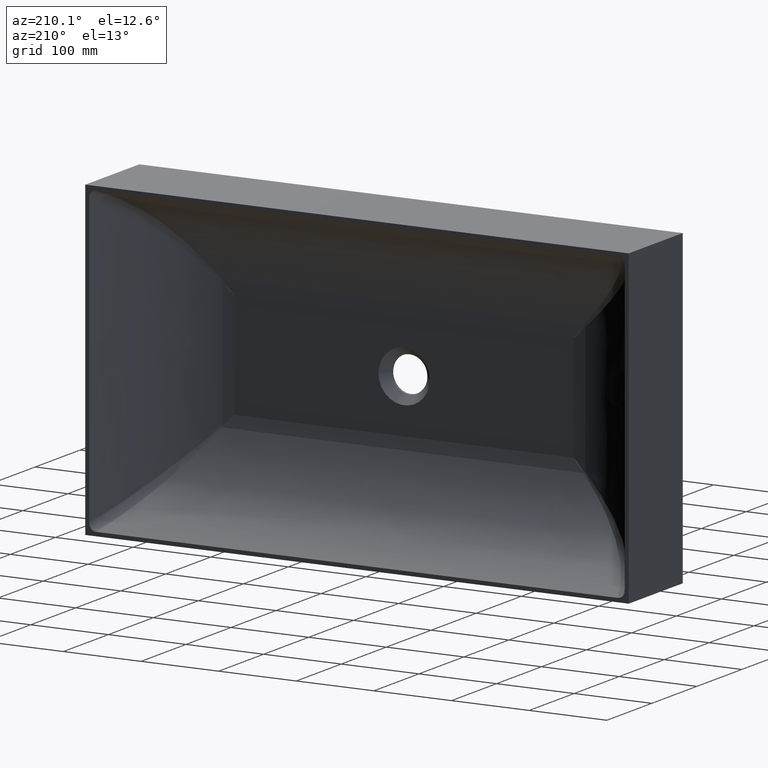
[diagram: clean part render]
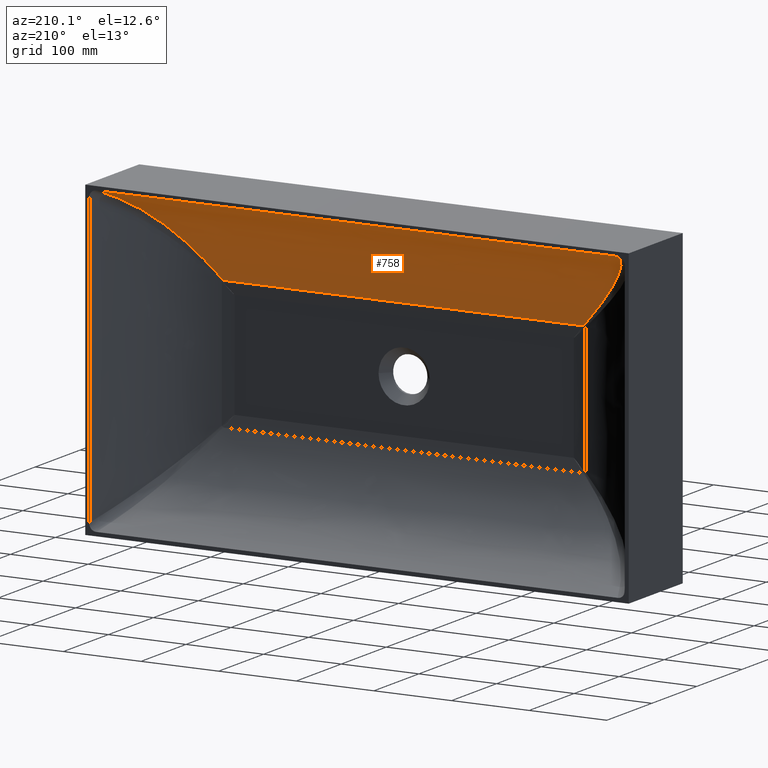
[diagram: same view with one face highlighted and labeled with its STEP entity id]
A machine part, auxiliary view. The second image highlights one B-rep face of the part: STEP entity #758.
In plain terms, the highlighted face is a freeform B-spline surface patch.
Its self-contained STEP definition (entity closure, byte-faithful):
#24 = CARTESIAN_POINT ( 'NONE',  ( -317.3066264094195500, 80.68230226644483600, 175.7607686184700800 ) ) ;
#53 = CARTESIAN_POINT ( 'NONE',  ( 335.5790577006914100, 119.9922663913401900, 194.9671193596227600 ) ) ;
#78 = ORIENTED_EDGE ( 'NONE', *, *, #134, .T. ) ;
#83 = EDGE_LOOP ( 'NONE', ( #2852, #899, #2395, #78 ) ) ;
#85 = CARTESIAN_POINT ( 'NONE',  ( -297.0550770644530900, 53.22900477632432400, 154.1138763266342000 ) ) ;
#111 = CARTESIAN_POINT ( 'NONE',  ( 0.0000000000000000000, 119.9999999999992200, 194.9470410668077100 ) ) ;
#134 = EDGE_CURVE ( 'NONE', #3217, #1709, #3107, .T. ) ;
#168 = CARTESIAN_POINT ( 'NONE',  ( 327.2722296423069100, 99.64894552346491700, 186.2698783149439000 ) ) ;
#200 = CARTESIAN_POINT ( 'NONE',  ( -327.1783490029910700, 99.44610857195272000, 186.1713505328625300 ) ) ;
#267 = CARTESIAN_POINT ( 'NONE',  ( 259.1934130581681800, 25.51750841957950300, 113.1494399535249500 ) ) ;
#387 = CARTESIAN_POINT ( 'NONE',  ( -224.9999999999978700, 15.14192706017334400, 74.99999999999928900 ) ) ;
#416 = DIRECTION ( 'NONE',  ( -1.000000000000000000, -0.0000000000000000000, -0.0000000000000000000 ) ) ;
#439 = CARTESIAN_POINT ( 'NONE',  ( 328.4482755062239200, 102.2283796903017500, 187.5033164088408500 ) ) ;
#443 = CARTESIAN_POINT ( 'NONE',  ( -312.4698190830774300, 72.99776030866070200, 170.6226761556751200 ) ) ;
#450 = CARTESIAN_POINT ( 'NONE',  ( -325.1938065460172400, 95.27425591492499300, 184.0865826517658700 ) ) ;
#456 = CARTESIAN_POINT ( 'NONE',  ( -307.4608583961118600, 65.85436435975087500, 165.2785037577404200 ) ) ;
#485 = CARTESIAN_POINT ( 'NONE',  ( 263.6618703320866100, 27.83141726354947600, 117.9835833059262900 ) ) ;
#487 = CARTESIAN_POINT ( 'NONE',  ( 327.8569277099741200, 100.9223965141017800, 186.8832995026013500 ) ) ;
#494 = CARTESIAN_POINT ( 'NONE',  ( 238.2607265738751000, 17.98234739744149000, 90.62296586599831000 ) ) ;
#500 = CARTESIAN_POINT ( 'NONE',  ( 288.4668329210251700, 44.82839929447220600, 144.8443966633425600 ) ) ;
#504 = CARTESIAN_POINT ( 'NONE',  ( -332.7614507323598900, 112.1531550752461500, 192.0164447968659800 ) ) ;
#516 = CARTESIAN_POINT ( 'NONE',  ( -84.06447398185434800, 18.98430783671530600, 102.1934219455680200 ) ) ;
#523 = CARTESIAN_POINT ( 'NONE',  ( -327.0876725036438300, 99.25062508290041300, 186.0761790793830500 ) ) ;
#545 = LINE ( 'NONE', #111, #2825 ) ;
#562 = DIRECTION ( 'NONE',  ( -1.000000000000000000, 0.0000000000000000000, -0.0000000000000000000 ) ) ;
#567 = CARTESIAN_POINT ( 'NONE',  ( -335.5790577006025600, 119.9922664137191500, 194.9671193020243700 ) ) ;
#577 = CARTESIAN_POINT ( 'NONE',  ( -74.99999999999751300, 15.14192706017334400, 74.99999999999928900 ) ) ;
#597 = CARTESIAN_POINT ( 'NONE',  ( -291.7890500186946400, 48.08568855827086000, 148.4299420910678900 ) ) ;
#619 = CARTESIAN_POINT ( 'NONE',  ( 110.9800307674646500, 87.79321814820718800, 182.9400923023900400 ) ) ;
#679 = CARTESIAN_POINT ( 'NONE',  ( -232.0997874732064800, 16.67600946821184100, 84.04874463206724000 ) ) ;
#688 = EDGE_CURVE ( 'NONE', #2506, #1315, #2358, .T. ) ;
#693 = CARTESIAN_POINT ( 'NONE',  ( 327.2742257637953600, 99.65326337320098600, 186.2719731383770400 ) ) ;
#697 = CARTESIAN_POINT ( 'NONE',  ( -326.5433588107935100, 98.08596459546230100, 185.5047334539326300 ) ) ;
#747 = CARTESIAN_POINT ( 'NONE',  ( 317.6912895954710100, 81.32983310398869000, 176.1683561946488800 ) ) ;
#750 = CARTESIAN_POINT ( 'NONE',  ( -320.6255068506317800, 86.41043185338337200, 179.2735175027982000 ) ) ;
#758 = ADVANCED_FACE ( 'NONE', ( #3226 ), #2503, .T. ) ;
#786 = CARTESIAN_POINT ( 'NONE',  ( 84.06447398185790100, 18.98430783671530600, 102.1934219455680200 ) ) ;
#816 = CARTESIAN_POINT ( 'NONE',  ( -274.2583913230332700, 33.86744645952724400, 129.4569832418126800 ) ) ;
#819 = CARTESIAN_POINT ( 'NONE',  ( -313.9485901820393100, 75.23817119666216500, 172.1966692411842500 ) ) ;
#857 = CARTESIAN_POINT ( 'NONE',  ( -344.9999999999971000, 120.1419270601733400, 194.9999999999985200 ) ) ;
#871 = CARTESIAN_POINT ( 'NONE',  ( 317.4223765345762400, 80.87661891696782800, 175.8834316352011100 ) ) ;
#874 = CARTESIAN_POINT ( 'NONE',  ( 345.0000000000006300, 120.1419270601733400, 194.9999999999985200 ) ) ;
#899 = ORIENTED_EDGE ( 'NONE', *, *, #688, .T. ) ;
#902 = CARTESIAN_POINT ( 'NONE',  ( 317.3775828976903900, 80.80136676138845100, 175.8359642794414400 ) ) ;
#918 = CARTESIAN_POINT ( 'NONE',  ( 332.9400923023922000, 87.79321814820718800, 182.9400923023900400 ) ) ;
#964 = CARTESIAN_POINT ( 'NONE',  ( -332.9400923023886200, 87.79321814820718800, 182.9400923023900400 ) ) ;
#972 = CARTESIAN_POINT ( 'NONE',  ( 334.1702269521768500, 116.0764994845922500, 193.4817137810219400 ) ) ;
#988 = CARTESIAN_POINT ( 'NONE',  ( 319.3878477761212500, 84.25653321627410700, 177.9641380552614900 ) ) ;
#991 = CARTESIAN_POINT ( 'NONE',  ( -318.9705374727204800, 83.47379609186295100, 177.5241044364958600 ) ) ;
#1004 = CARTESIAN_POINT ( 'NONE',  ( 1.776356839400250500E-012, 16.67600946821231400, 84.04874463206901700 ) ) ;
#1014 = CARTESIAN_POINT ( 'NONE',  ( -292.5909804814274400, 48.86257580212167500, 149.2956754318293000 ) ) ;
#1024 = CARTESIAN_POINT ( 'NONE',  ( -232.0997874732064800, 16.67600946821184100, 84.04874463206724000 ) ) ;
#1049 = CARTESIAN_POINT ( 'NONE',  ( -260.8080639057740200, 26.39928409088373200, 114.8973447898894400 ) ) ;
#1068 = CARTESIAN_POINT ( 'NONE',  ( 317.5119855467161800, 81.02736604320938300, 175.9783836889033100 ) ) ;
#1073 = CARTESIAN_POINT ( 'NONE',  ( 263.6286830689073800, 27.81422457026816300, 117.9476799588762500 ) ) ;
#1082 = CARTESIAN_POINT ( 'NONE',  ( -317.3253226096974200, 80.71365760194122200, 175.7805822907838000 ) ) ;
#1129 = CARTESIAN_POINT ( 'NONE',  ( 91.84225175963689500, 28.98430783671532000, 125.5267552789014500 ) ) ;
#1146 = CARTESIAN_POINT ( 'NONE',  ( -327.2236824190210300, 99.54399794345268000, 186.2189285163973700 ) ) ;
#1164 = CARTESIAN_POINT ( 'NONE',  ( 327.5625226311322500, 100.2789961956197300, 186.5744792063037800 ) ) ;
#1175 = CARTESIAN_POINT ( 'NONE',  ( -317.1232894730588300, 80.37545793556429900, 175.5664556726413500 ) ) ;
#1181 = CARTESIAN_POINT ( 'NONE',  ( -326.9062819025451200, 98.86083734146832600, 185.8857753420761300 ) ) ;
#1272 = CARTESIAN_POINT ( 'NONE',  ( -327.2625370331556400, 99.62798139108956300, 186.2597055023900300 ) ) ;
#1288 = CARTESIAN_POINT ( 'NONE',  ( 275.5267552789018200, 28.98430783671532000, 125.5267552789014500 ) ) ;
#1311 = CARTESIAN_POINT ( 'NONE',  ( -263.3817404427707600, 27.68665710730804400, 117.6805352766725700 ) ) ;
#1315 = VERTEX_POINT ( 'NONE', #1889 ) ;
#1347 = CARTESIAN_POINT ( 'NONE',  ( -317.3296017486001100, 80.72083578052225100, 175.7851171468048800 ) ) ;
#1363 = CARTESIAN_POINT ( 'NONE',  ( -269.1128024024156400, 30.65406842306478600, 123.8806051955411800 ) ) ;
#1401 = CARTESIAN_POINT ( 'NONE',  ( 270.3157150761026100, 31.54771247591815000, 125.1860328598328500 ) ) ;
#1415 = CARTESIAN_POINT ( 'NONE',  ( 292.8593756875519000, 49.12511172554843600, 149.5853600473346300 ) ) ;
#1430 = CARTESIAN_POINT ( 'NONE',  ( 328.9592370394015000, 103.3811042475193900, 188.0385660676075200 ) ) ;
#1465 = CARTESIAN_POINT ( 'NONE',  ( 75.00000000000106600, 15.14192706017334400, 74.99999999999928900 ) ) ;
#1482 = CARTESIAN_POINT ( 'NONE',  ( 283.9354560105948100, 40.95464305849713300, 139.9389244733185900 ) ) ;
#1484 = CARTESIAN_POINT ( 'NONE',  ( -283.8585881384188400, 41.03717244376304800, 139.8549960268641100 ) ) ;
#1485 = CARTESIAN_POINT ( 'NONE',  ( 254.3909770184978900, 23.38846040987906200, 107.9618733095112500 ) ) ;
#1486 = LINE ( 'NONE', #1004, #2231 ) ;
#1569 = CARTESIAN_POINT ( 'NONE',  ( 317.3455919322787500, 80.74766504321405600, 175.8020626131768200 ) ) ;
#1593 = CARTESIAN_POINT ( 'NONE',  ( -323.1157868688132500, 91.12899355778330300, 181.8995257292765500 ) ) ;
#1610 = CARTESIAN_POINT ( 'NONE',  ( -317.2280788441959800, 80.55070007011760000, 175.6775225650258100 ) ) ;
#1661 = CARTESIAN_POINT ( 'NONE',  ( 327.4156466616815900, 99.95967840393532800, 186.4203757825616800 ) ) ;
#1671 = CARTESIAN_POINT ( 'NONE',  ( 296.4927057450335000, 52.80678250999118700, 153.5034922761866500 ) ) ;
#1676 = CARTESIAN_POINT ( 'NONE',  ( -316.4931358104452700, 79.32945422287444600, 174.8983288541444700 ) ) ;
#1690 = CARTESIAN_POINT ( 'NONE',  ( -281.5161511368968400, 39.18281229809762300, 137.3183971899246100 ) ) ;
#1691 = CARTESIAN_POINT ( 'NONE',  ( -263.5940835475643700, 27.79631271435435700, 117.9102490916322400 ) ) ;
#1703 = CARTESIAN_POINT ( 'NONE',  ( -263.5031390323055700, 27.74929076329744500, 117.8118635522178200 ) ) ;
#1709 = VERTEX_POINT ( 'NONE', #2260 ) ;
#1730 = CARTESIAN_POINT ( 'NONE',  ( 294.6136897588957600, 50.87274885486559100, 151.4779893077123300 ) ) ;
#1809 = CARTESIAN_POINT ( 'NONE',  ( -287.2633256288259000, 43.93505820575726500, 143.5387945333840500 ) ) ;
#1824 = CARTESIAN_POINT ( 'NONE',  ( -257.8960901251095900, 25.03168968775762700, 111.7508156198224500 ) ) ;
#1848 = CARTESIAN_POINT ( 'NONE',  ( 327.2794599488602200, 99.66458638384754900, 186.2774661189499700 ) ) ;
#1852 = CARTESIAN_POINT ( 'NONE',  ( -301.2924346986961300, 57.95158483624668100, 158.6720232663641400 ) ) ;
#1857 = CARTESIAN_POINT ( 'NONE',  ( -288.9384608454188900, 45.41308951033108300, 145.3504175720264000 ) ) ;
#1889 = CARTESIAN_POINT ( 'NONE',  ( -335.5790577006025600, 119.9922664137191500, 194.9671193020243700 ) ) ;
#1890 = CARTESIAN_POINT ( 'NONE',  ( -261.6653634635950400, 26.81738001188090700, 115.8241570343220300 ) ) ;
#1891 = CARTESIAN_POINT ( 'NONE',  ( 252.1934219455683900, 18.98430783671530600, 102.1934219455680200 ) ) ;
#1904 = CARTESIAN_POINT ( 'NONE',  ( 325.6112952176998200, 96.05665338683522200, 184.5268047076498900 ) ) ;
#1932 = CARTESIAN_POINT ( 'NONE',  ( 264.8202799909154800, 28.43876146174131500, 119.2369254645368500 ) ) ;
#1943 = CARTESIAN_POINT ( 'NONE',  ( -252.1934219455666000, 18.98430783671530600, 102.1934219455680200 ) ) ;
#1945 = CARTESIAN_POINT ( 'NONE',  ( -263.6157238698958700, 27.80751428376490600, 117.9336602998092000 ) ) ;
#1986 = CARTESIAN_POINT ( 'NONE',  ( 320.6268311548187700, 86.46278366916300200, 179.2738532568676500 ) ) ;
#2015 = CARTESIAN_POINT ( 'NONE',  ( 293.6701768687734700, 49.92598367000509500, 150.4602690817123700 ) ) ;
#2083 = CARTESIAN_POINT ( 'NONE',  ( 225.0000000000014200, 15.14192706017334400, 74.99999999999928900 ) ) ;
#2088 = CARTESIAN_POINT ( 'NONE',  ( -315.6491788399427500, 77.94926218742681100, 174.0029240407883700 ) ) ;
#2113 = CARTESIAN_POINT ( 'NONE',  ( -251.7743254775162100, 22.44654113396834200, 105.1459967664038500 ) ) ;
#2120 = CARTESIAN_POINT ( 'NONE',  ( 330.6767008446561200, 107.3602415969508300, 189.8357761046546800 ) ) ;
#2136 = CARTESIAN_POINT ( 'NONE',  ( -243.9245477879342200, 19.62085762528574400, 96.69855986041420700 ) ) ;
#2155 = CARTESIAN_POINT ( 'NONE',  ( 243.9246186810536600, 19.62087989881008100, 96.69863626574803600 ) ) ;
#2156 = CARTESIAN_POINT ( 'NONE',  ( -317.3178443113179100, 80.70111477097361800, 175.7726570430284900 ) ) ;
#2196 = CARTESIAN_POINT ( 'NONE',  ( -309.4856994776325800, 68.62515587846228000, 167.4421779481002400 ) ) ;
#2197 = CARTESIAN_POINT ( 'NONE',  ( -263.6070681667940200, 27.80303346589962400, 117.9242962678978400 ) ) ;
#2227 = CARTESIAN_POINT ( 'NONE',  ( -317.2804481253663200, 80.63841861474716700, 175.7330250914766300 ) ) ;
#2231 = VECTOR ( 'NONE', #562, 1000.000000000000000 ) ;
#2253 = CARTESIAN_POINT ( 'NONE',  ( 105.4244752119117800, 62.79321814820719500, 166.2734256357243200 ) ) ;
#2260 = CARTESIAN_POINT ( 'NONE',  ( 232.0997874732100300, 16.67600946821206500, 84.04874463206724000 ) ) ;
#2266 = CARTESIAN_POINT ( 'NONE',  ( 301.2611578181826000, 58.08814331338835000, 158.6335623847288600 ) ) ;
#2304 = CARTESIAN_POINT ( 'NONE',  ( 318.7694106713936400, 83.17206057249063600, 177.3099894873987000 ) ) ;
#2336 = CARTESIAN_POINT ( 'NONE',  ( 293.1974388316795100, 49.45762648897949300, 149.9501902908163800 ) ) ;
#2358 = B_SPLINE_CURVE_WITH_KNOTS ( 'NONE', 3,
 ( #1024, #2767, #2136, #2113, #3260, #1824, #3308, #1049, #1890, #3194, #3312, #1311, #1703, #2423, #1691, #2197, #1945, #3298, #1363, #816, #1690, #1484, #1809, #1857, #3327, #597, #3015, #3027, #1014, #3263, #85, #1852, #456, #2196, #443, #819, #2088, #1676, #2755, #1175, #1610, #2227, #24, #2156, #1082, #1347, #991, #750, #1593, #3160, #450, #2938, #697, #1181, #523, #200, #1146, #2380, #2548, #1272, #2925, #2446, #504, #567 ),
 .UNSPECIFIED., .F., .F.,
 ( 4, 2, 2, 2, 1, 1, 1, 1, 1, 1, 1, 2, 2, 2, 2, 1, 1, 1, 1, 2, 2, 2, 2, 1, 1, 1, 1, 1, 1, 1, 1, 2, 2, 2, 2, 1, 1, 1, 1, 1, 1, 1, 2, 2, 4 ),
 ( 0.0000000000000000000, 0.1250000000001154600, 0.1875000000001733600, 0.2187500000002026200, 0.2343750000002172200, 0.2421875000002242100, 0.2460937500002272900, 0.2480468750002291800, 0.2490234375002301500, 0.2495117187502306200, 0.2497558593752309500, 0.2498779296877308700, 0.2500000000002307600, 0.3750000000001180200, 0.4375000000000613400, 0.4687500000000334200, 0.4843750000000196000, 0.4921875000000126600, 0.4960937500000093300, 0.4980468750000076100, 0.5000000000000058800, 0.6249999999998872000, 0.6874999999998279200, 0.7187499999997980500, 0.7343749999997831700, 0.7421874999997759600, 0.7460937499997721800, 0.7480468749997702900, 0.7490234374997695200, 0.7495117187497690700, 0.7497558593747689600, 0.7498779296872689600, 0.7499999999997689600, 0.8124999999998801000, 0.8437499999999353900, 0.8593749999999629200, 0.8671874999999764600, 0.8710937499999831200, 0.8730468749999866800, 0.8740234374999883400, 0.8745117187499890100, 0.8747558593749893400, 0.8748779296874895600, 0.8749999999999897900, 1.000000000000000000 ),
 .UNSPECIFIED. ) ;
#2380 = CARTESIAN_POINT ( 'NONE',  ( -327.2463479019436400, 99.59297956376732900, 186.2427155549227700 ) ) ;
#2395 = ORIENTED_EDGE ( 'NONE', *, *, #2559, .F. ) ;
#2400 = CARTESIAN_POINT ( 'NONE',  ( -91.84225175963334200, 28.98430783671532000, 125.5267552789014500 ) ) ;
#2407 = CARTESIAN_POINT ( 'NONE',  ( 274.1816296963006600, 33.95005270910446900, 129.3731687427639400 ) ) ;
#2423 = CARTESIAN_POINT ( 'NONE',  ( -263.5637786495652800, 27.78063428900922100, 117.8774644472878500 ) ) ;
#2446 = CARTESIAN_POINT ( 'NONE',  ( -329.9487105724202800, 105.4376769534205500, 189.0787198144944600 ) ) ;
#2449 = CARTESIAN_POINT ( 'NONE',  ( 329.9859109655513400, 105.7321307989434300, 189.1134114329993000 ) ) ;
#2470 = CARTESIAN_POINT ( 'NONE',  ( 232.0997874732100300, 16.67600946821206500, 84.04874463206724000 ) ) ;
#2492 = CARTESIAN_POINT ( 'NONE',  ( 323.9459098852603900, 92.70190716742818900, 182.7748934732048300 ) ) ;
#2503 = B_SPLINE_SURFACE_WITH_KNOTS ( 'NONE', 3, 3, ( 
 ( #2083, #1891, #1288, #3205, #918, #874 ),
 ( #1465, #786, #1129, #2253, #619, #2972 ),
 ( #577, #516, #2400, #2904, #3083, #2650 ),
 ( #387, #1943, #2960, #2912, #964, #857 ) ),
 .UNSPECIFIED., .F., .F., .F.,
 ( 4, 4 ),
 ( 4, 2, 4 ),
 ( 0.0000000000000000000, 1.000000000000000000 ),
 ( 0.0000000000000000000, 0.4779100856724731200, 1.000000000000000000 ),
 .UNSPECIFIED. ) ;
#2506 = VERTEX_POINT ( 'NONE', #679 ) ;
#2548 = CARTESIAN_POINT ( 'NONE',  ( -327.2560614160309500, 99.61397960429087600, 186.2529095795839000 ) ) ;
#2559 = EDGE_CURVE ( 'NONE', #3217, #1315, #545, .T. ) ;
#2581 = CARTESIAN_POINT ( 'NONE',  ( 263.6993755274353900, 27.85086057147156400, 118.0241582157373400 ) ) ;
#2593 = CARTESIAN_POINT ( 'NONE',  ( 317.3365353740902600, 80.73246800677048900, 175.7924649805508700 ) ) ;
#2614 = CARTESIAN_POINT ( 'NONE',  ( 263.9242144217021200, 27.96772854943759500, 118.2674051532114800 ) ) ;
#2620 = EDGE_CURVE ( 'NONE', #1709, #2506, #1486, .T. ) ;
#2621 = CARTESIAN_POINT ( 'NONE',  ( 263.6457937325723200, 27.82308760446896700, 117.9661909581056800 ) ) ;
#2633 = CARTESIAN_POINT ( 'NONE',  ( 263.7743584432170700, 27.88977692771058500, 118.1052790990456000 ) ) ;
#2645 = CARTESIAN_POINT ( 'NONE',  ( 327.3056347420814500, 99.72122874461665300, 186.3049346643048500 ) ) ;
#2650 = CARTESIAN_POINT ( 'NONE',  ( -114.9999999999966600, 120.1419270601733400, 194.9999999999985200 ) ) ;
#2657 = CARTESIAN_POINT ( 'NONE',  ( 263.6350753451899300, 27.81753520675357200, 117.9545953704522400 ) ) ;
#2712 = CARTESIAN_POINT ( 'NONE',  ( 264.2234873388562700, 28.12410701132807100, 118.5911946741278600 ) ) ;
#2714 = CARTESIAN_POINT ( 'NONE',  ( 317.3391941437042800, 80.73692917445825400, 175.7952826034623700 ) ) ;
#2755 = CARTESIAN_POINT ( 'NONE',  ( -316.9135078431206700, 80.02575284261017400, 175.3440749328190700 ) ) ;
#2767 = CARTESIAN_POINT ( 'NONE',  ( -238.2606748975629500, 17.98233644022902000, 90.62291072319210600 ) ) ;
#2822 = CARTESIAN_POINT ( 'NONE',  ( 303.3486052359136200, 60.58588013762582800, 160.8742145894892100 ) ) ;
#2825 = VECTOR ( 'NONE', #416, 1000.000000000000000 ) ;
#2827 = CARTESIAN_POINT ( 'NONE',  ( 309.5170332508210400, 68.48867098714112000, 167.4807000019650600 ) ) ;
#2833 = CARTESIAN_POINT ( 'NONE',  ( 298.0890196540182700, 54.53499102998195300, 155.2219555633492400 ) ) ;
#2837 = CARTESIAN_POINT ( 'NONE',  ( 292.7905729310617700, 49.05767105421873700, 149.5111034687045300 ) ) ;
#2852 = ORIENTED_EDGE ( 'NONE', *, *, #2620, .T. ) ;
#2877 = CARTESIAN_POINT ( 'NONE',  ( 268.3523025928530500, 30.37941793147902900, 123.0598105325134800 ) ) ;
#2904 = CARTESIAN_POINT ( 'NONE',  ( -105.4244752119064500, 62.79321814820719500, 166.2734256357243200 ) ) ;
#2912 = CARTESIAN_POINT ( 'NONE',  ( -316.2734256357211400, 62.79321814820719500, 166.2734256357243200 ) ) ;
#2925 = CARTESIAN_POINT ( 'NONE',  ( -327.2663956691917500, 99.63632596310347400, 186.2637549774821100 ) ) ;
#2938 = CARTESIAN_POINT ( 'NONE',  ( -325.8170130073007700, 96.55491674182779600, 184.7417830547104500 ) ) ;
#2960 = CARTESIAN_POINT ( 'NONE',  ( -275.5267552788982400, 28.98430783671532000, 125.5267552789014500 ) ) ;
#2972 = CARTESIAN_POINT ( 'NONE',  ( 115.0000000000002100, 120.1419270601733400, 194.9999999999985200 ) ) ;
#3015 = CARTESIAN_POINT ( 'NONE',  ( -292.2575092831085600, 48.53816644298141400, 148.9357069589265700 ) ) ;
#3027 = CARTESIAN_POINT ( 'NONE',  ( -292.4576725254966600, 48.73272674301866700, 149.1517791541642500 ) ) ;
#3030 = CARTESIAN_POINT ( 'NONE',  ( 276.6777033927845100, 35.63927561941286400, 132.0775177111391900 ) ) ;
#3032 = CARTESIAN_POINT ( 'NONE',  ( 321.4556357266402000, 87.98335176055252300, 180.1488910926369700 ) ) ;
#3083 = CARTESIAN_POINT ( 'NONE',  ( -110.9800307674611000, 87.79321814820718800, 182.9400923023900400 ) ) ;
#3107 = B_SPLINE_CURVE_WITH_KNOTS ( 'NONE', 3,
 ( #3280, #972, #3256, #2120, #2449, #1430, #439, #487, #1164, #1661, #3110, #2645, #3317, #1848, #693, #168, #1904, #2492, #3032, #1986, #988, #2304, #3178, #747, #1068, #871, #902, #3266, #1569, #2714, #2593, #3133, #2827, #2822, #2266, #2833, #1671, #1730, #2015, #2336, #3202, #1415, #2837, #500, #1482, #3030, #2407, #1401, #2877, #3319, #1932, #2712, #2614, #2633, #2581, #485, #2621, #2657, #1073, #267, #1485, #2155, #494, #2470 ),
 .UNSPECIFIED., .F., .F.,
 ( 4, 2, 2, 1, 1, 1, 1, 1, 1, 1, 2, 2, 2, 2, 1, 1, 1, 1, 1, 1, 1, 2, 2, 2, 2, 1, 1, 1, 1, 2, 2, 2, 2, 1, 1, 1, 1, 1, 1, 1, 1, 2, 2, 2, 4 ),
 ( 0.0000000000000000000, 0.06249999999994307300, 0.09374999999991494300, 0.1093749999999007000, 0.1171874999998934200, 0.1210937499998898400, 0.1230468749998879600, 0.1240234374998873100, 0.1245117187498869900, 0.1247558593748867400, 0.1248779296873864200, 0.1249999999998861000, 0.1874999999997391800, 0.2187499999996655500, 0.2343749999996288200, 0.2421874999996103400, 0.2460937499996012100, 0.2480468749995966300, 0.2490234374995942400, 0.2495117187495928500, 0.2497558593745923800, 0.2498779296870922400, 0.2499999999995921000, 0.3749999999994545500, 0.4374999999993854900, 0.4687499999993509600, 0.4843749999993334800, 0.4921874999993247600, 0.4960937499993206500, 0.4980468749993184300, 0.4999999999993162100, 0.6249999999991761000, 0.6874999999991059400, 0.7187499999990705200, 0.7343749999990530900, 0.7421874999990445400, 0.7460937499990406600, 0.7480468749990384400, 0.7490234374990376600, 0.7495117187490375500, 0.7497558593740375500, 0.7498779296865376600, 0.7499999999990377700, 0.8749999999995187200, 1.000000000000000000 ),
 .UNSPECIFIED. ) ;
#3110 = CARTESIAN_POINT ( 'NONE',  ( 327.3422914839862900, 99.80061317891740200, 186.3434019560697800 ) ) ;
#3133 = CARTESIAN_POINT ( 'NONE',  ( 313.5042418305754400, 74.30311836095354700, 171.7311792521647100 ) ) ;
#3160 = CARTESIAN_POINT ( 'NONE',  ( -323.9471708736200500, 92.75413853884538200, 182.7751621142923900 ) ) ;
#3178 = CARTESIAN_POINT ( 'NONE',  ( 318.0502343453046600, 81.93867086553990500, 176.5485670219254900 ) ) ;
#3194 = CARTESIAN_POINT ( 'NONE',  ( -262.6499985565645300, 27.31236171940368600, 116.8890168380579400 ) ) ;
#3202 = CARTESIAN_POINT ( 'NONE',  ( 292.9946285715358800, 49.25797484893926300, 149.7313264618385900 ) ) ;
#3205 = CARTESIAN_POINT ( 'NONE',  ( 316.2734256357282400, 62.79321814820719500, 166.2734256357243200 ) ) ;
#3217 = VERTEX_POINT ( 'NONE', #53 ) ;
#3226 = FACE_OUTER_BOUND ( 'NONE', #83, .T. ) ;
#3256 = CARTESIAN_POINT ( 'NONE',  ( 332.7622299760163300, 112.4365294355629500, 192.0142076163209000 ) ) ;
#3260 = CARTESIAN_POINT ( 'NONE',  ( -254.2831311449899700, 23.44986360545930600, 107.8507333429993600 ) ) ;
#3263 = CARTESIAN_POINT ( 'NONE',  ( -292.6564155338592700, 48.92644477004607500, 149.3663044568887100 ) ) ;
#3266 = CARTESIAN_POINT ( 'NONE',  ( 317.3551888110453700, 80.76377101131970400, 175.8122327844823800 ) ) ;
#3280 = CARTESIAN_POINT ( 'NONE',  ( 335.5790577006914100, 119.9922663913401900, 194.9671193596227600 ) ) ;
#3298 = CARTESIAN_POINT ( 'NONE',  ( -263.6190187195139700, 27.80922011504788600, 117.9372247834524500 ) ) ;
#3308 = CARTESIAN_POINT ( 'NONE',  ( -259.0753613727869700, 25.57177904937241000, 113.0246682645793200 ) ) ;
#3312 = CARTESIAN_POINT ( 'NONE',  ( -263.1384652835035400, 27.56160414166094000, 117.4173723046518600 ) ) ;
#3317 = CARTESIAN_POINT ( 'NONE',  ( 327.2873116009892600, 99.68157354212094400, 186.2857059425348900 ) ) ;
#3319 = CARTESIAN_POINT ( 'NONE',  ( 266.0068763352760500, 29.07563371396887300, 120.5210108119159300 ) ) ;
#3327 = CARTESIAN_POINT ( 'NONE',  ( -290.8464643367529400, 47.18674243359868800, 147.4120110028430900 ) ) ;